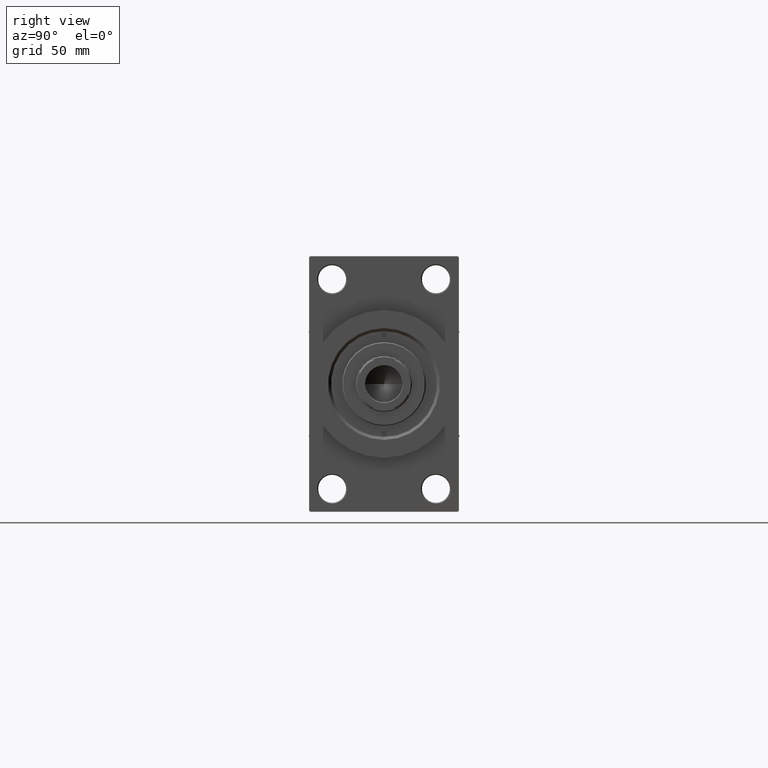
[diagram: clean part render]
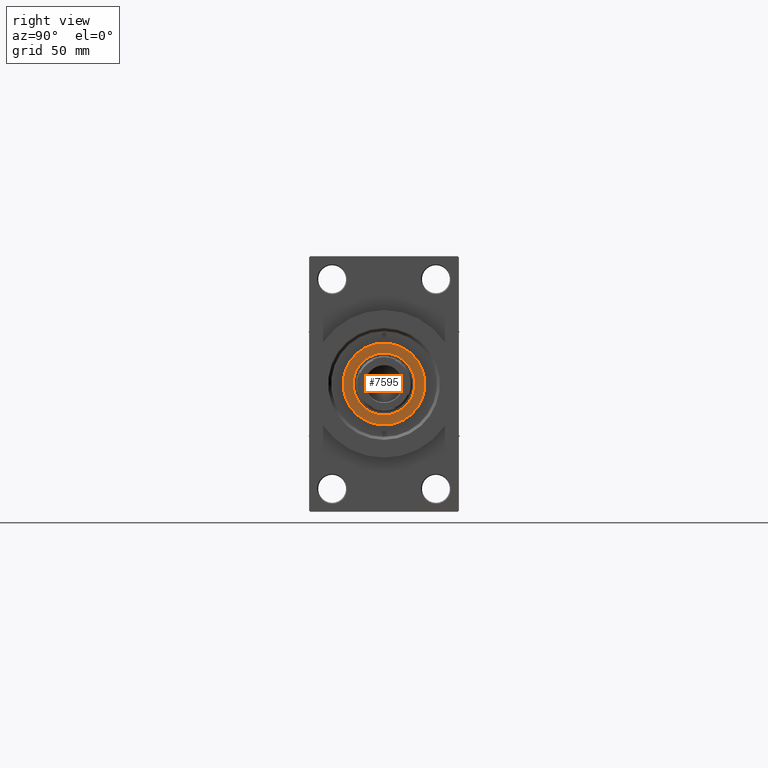
[diagram: same view with one face highlighted and labeled with its STEP entity id]
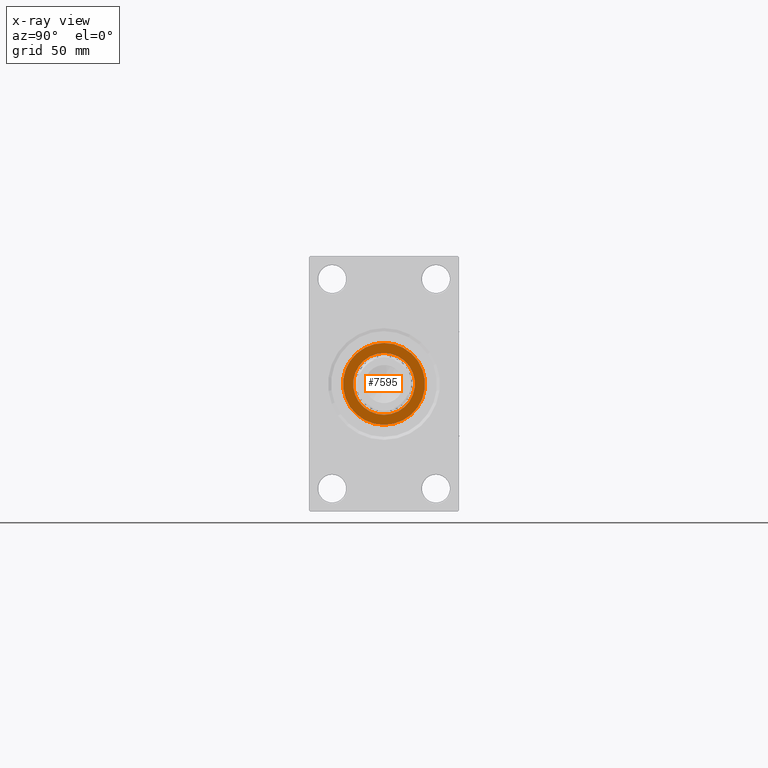
[diagram: x-ray of the same camera — body ghosted, the highlighted face saturated]
A machine part, right view. The second image highlights one B-rep face of the part: STEP entity #7595.
The next image is the same camera in x-ray: the body ghosted, the highlighted face saturated — about 0% of this face is hidden behind the body in this view.
In plain terms, the highlighted planar face has unit normal (1, -0, -0).
Its self-contained STEP definition (entity closure, byte-faithful):
#1293 = VERTEX_POINT ( 'NONE', #10637 ) ;
#2125 = DIRECTION ( 'NONE',  ( 1.000000000000000000, 0.000000000000000000, -0.000000000000000000 ) ) ;
#3989 = DIRECTION ( 'NONE',  ( 1.000000000000000000, 0.000000000000000000, 0.000000000000000000 ) ) ;
#4534 = FACE_BOUND ( 'NONE', #20450, .T. ) ;
#7595 = ADVANCED_FACE ( 'NONE', ( #4534, #22986 ), #23224, .T. ) ;
#8540 = AXIS2_PLACEMENT_3D ( 'NONE', #10615, #11555, #33101 ) ;
#10615 = CARTESIAN_POINT ( 'NONE',  ( 0.000000000000000000, 0.000000000000000000, 52.25999999999999801 ) ) ;
#10637 = CARTESIAN_POINT ( 'NONE',  ( -15.50000000000000000, 1.898202538678397557E-15, 52.25999999999999801 ) ) ;
#11010 = VERTEX_POINT ( 'NONE', #41588 ) ;
#11298 = ORIENTED_EDGE ( 'NONE', *, *, #29616, .T. ) ;
#11555 = DIRECTION ( 'NONE',  ( 0.000000000000000000, 0.000000000000000000, 1.000000000000000000 ) ) ;
#14741 = AXIS2_PLACEMENT_3D ( 'NONE', #44816, #23695, #2125 ) ;
#15509 = CARTESIAN_POINT ( 'NONE',  ( -20.50000000000000355, 0.000000000000000000, 52.25999999999999801 ) ) ;
#16215 = CIRCLE ( 'NONE', #8540, 15.50000000000000000 ) ;
#18162 = CIRCLE ( 'NONE', #44979, 20.50000000000000355 ) ;
#18240 = CIRCLE ( 'NONE', #18995, 20.50000000000000355 ) ;
#18995 = AXIS2_PLACEMENT_3D ( 'NONE', #47394, #39711, #3989 ) ;
#20450 = EDGE_LOOP ( 'NONE', ( #25816, #21844 ) ) ;
#21844 = ORIENTED_EDGE ( 'NONE', *, *, #46096, .F. ) ;
#22310 = ORIENTED_EDGE ( 'NONE', *, *, #30925, .T. ) ;
#22641 = DIRECTION ( 'NONE',  ( 1.000000000000000000, 0.000000000000000000, 0.000000000000000000 ) ) ;
#22986 = FACE_OUTER_BOUND ( 'NONE', #26688, .T. ) ;
#23224 = PLANE ( 'NONE',  #14741 ) ;
#23695 = DIRECTION ( 'NONE',  ( 0.000000000000000000, 0.000000000000000000, 1.000000000000000000 ) ) ;
#25816 = ORIENTED_EDGE ( 'NONE', *, *, #35242, .F. ) ;
#26688 = EDGE_LOOP ( 'NONE', ( #11298, #22310 ) ) ;
#27166 = DIRECTION ( 'NONE',  ( 0.000000000000000000, 0.000000000000000000, 1.000000000000000000 ) ) ;
#28576 = CARTESIAN_POINT ( 'NONE',  ( 20.50000000000000355, 2.541142108230758269E-15, 52.25999999999999801 ) ) ;
#29616 = EDGE_CURVE ( 'NONE', #33790, #38630, #18240, .T. ) ;
#30925 = EDGE_CURVE ( 'NONE', #38630, #33790, #18162, .T. ) ;
#30943 = DIRECTION ( 'NONE',  ( 0.000000000000000000, 0.000000000000000000, 1.000000000000000000 ) ) ;
#31651 = DIRECTION ( 'NONE',  ( 1.000000000000000000, 0.000000000000000000, 0.000000000000000000 ) ) ;
#33101 = DIRECTION ( 'NONE',  ( 1.000000000000000000, 0.000000000000000000, 0.000000000000000000 ) ) ;
#33790 = VERTEX_POINT ( 'NONE', #15509 ) ;
#35108 = CIRCLE ( 'NONE', #42797, 15.50000000000000000 ) ;
#35242 = EDGE_CURVE ( 'NONE', #11010, #1293, #35108, .T. ) ;
#38137 = CARTESIAN_POINT ( 'NONE',  ( 0.000000000000000000, 0.000000000000000000, 52.25999999999999801 ) ) ;
#38630 = VERTEX_POINT ( 'NONE', #28576 ) ;
#39711 = DIRECTION ( 'NONE',  ( 0.000000000000000000, 0.000000000000000000, 1.000000000000000000 ) ) ;
#40851 = CARTESIAN_POINT ( 'NONE',  ( 0.000000000000000000, 0.000000000000000000, 52.25999999999999801 ) ) ;
#41588 = CARTESIAN_POINT ( 'NONE',  ( 15.50000000000000000, 0.000000000000000000, 52.25999999999999801 ) ) ;
#42797 = AXIS2_PLACEMENT_3D ( 'NONE', #38137, #30943, #31651 ) ;
#44816 = CARTESIAN_POINT ( 'NONE',  ( 0.000000000000000000, 0.000000000000000000, 52.25999999999999801 ) ) ;
#44979 = AXIS2_PLACEMENT_3D ( 'NONE', #40851, #27166, #22641 ) ;
#46096 = EDGE_CURVE ( 'NONE', #1293, #11010, #16215, .T. ) ;
#47394 = CARTESIAN_POINT ( 'NONE',  ( 0.000000000000000000, 0.000000000000000000, 52.25999999999999801 ) ) ;